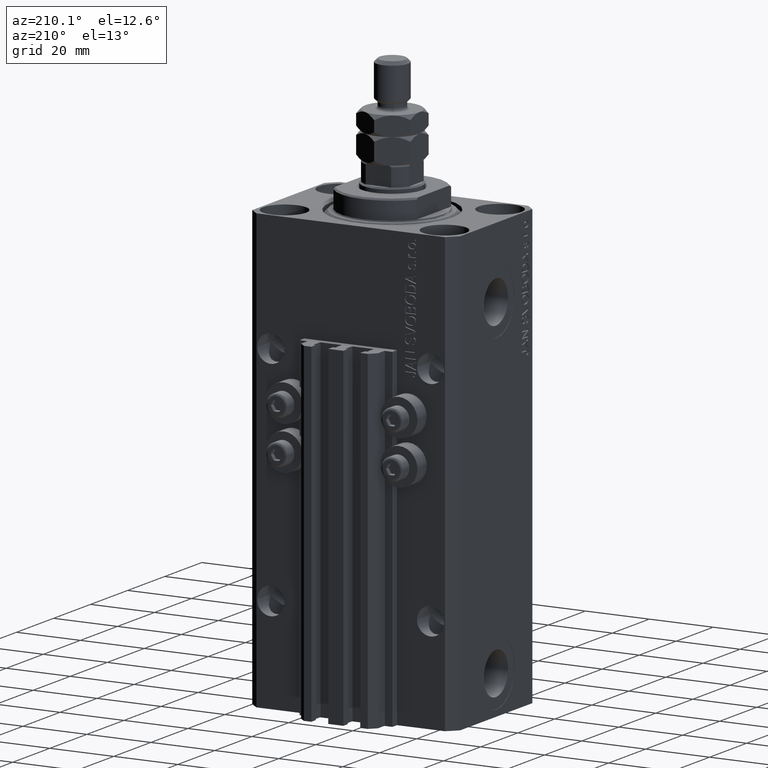
[diagram: clean part render]
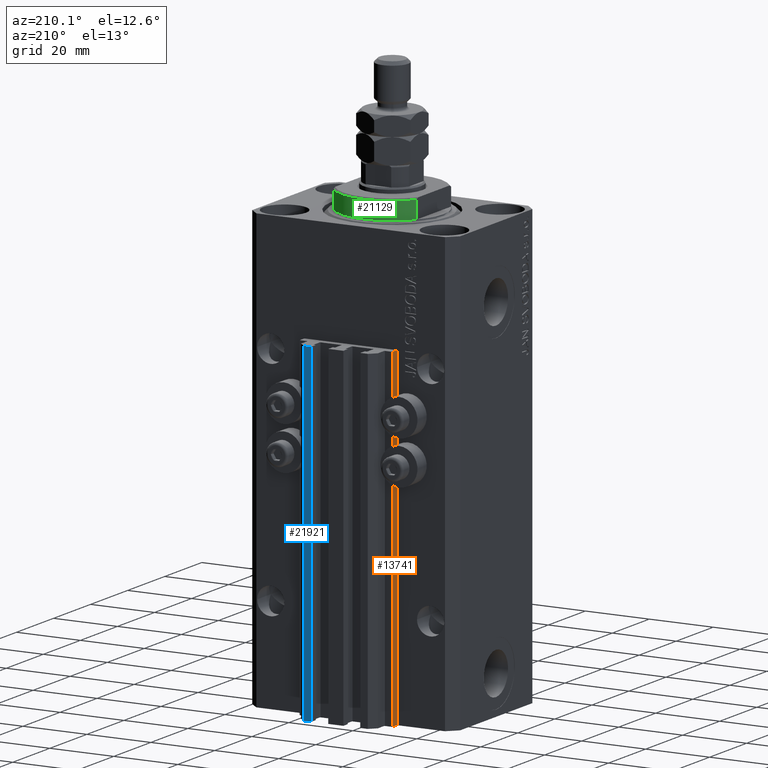
[diagram: same view with three faces highlighted in distinct colors, each labeled with its STEP entity id]
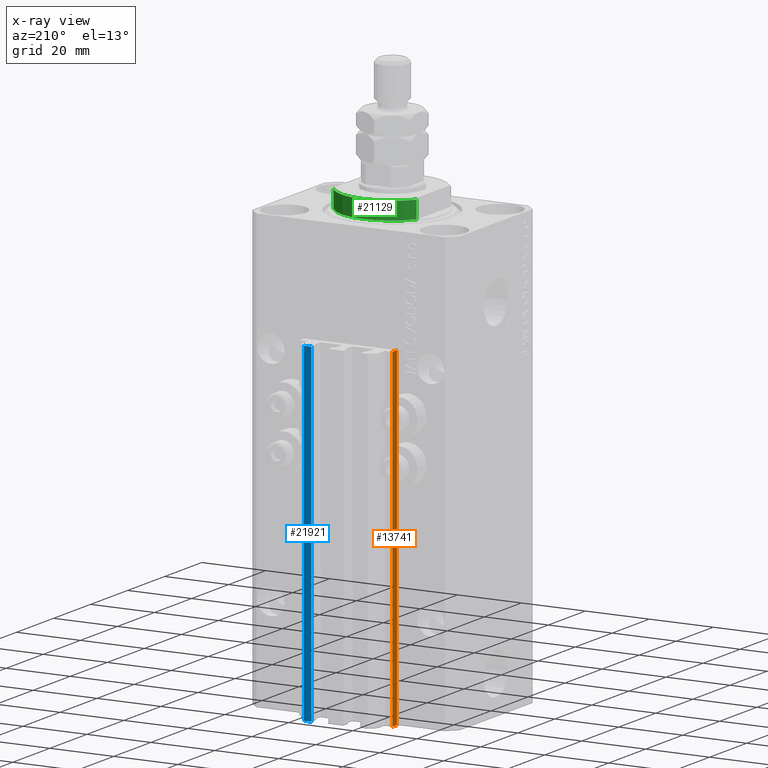
[diagram: x-ray of the same camera — body ghosted, the three highlighted faces saturated]
A machine part, auxiliary view with three faces highlighted in distinct colors.
The next image is the same camera in x-ray (body ghosted, the three faces saturated) — at least one of them is partly hidden behind the body in this view.
Their STEP definitions:

[orange] entity #13741 — the highlighted planar face has unit normal (-1, 0, 0).
#6391 = AXIS2_PLACEMENT_3D ( 'NONE', #11581, #19884, #31492 ) ;
#7897 = DIRECTION ( 'NONE',  ( 0.000000000000000000, -1.000000000000000000, 0.000000000000000000 ) ) ;
#11581 = CARTESIAN_POINT ( 'NONE',  ( -14.50000000000000000, 24.99999999999949196, -137.0000000000000000 ) ) ;
#12484 = ORIENTED_EDGE ( 'NONE', *, *, #44656, .F. ) ;
#12880 = DIRECTION ( 'NONE',  ( 0.000000000000000000, 0.000000000000000000, 1.000000000000000000 ) ) ;
#13560 = EDGE_CURVE ( 'NONE', #25637, #23676, #34613, .T. ) ;
#13741 = ADVANCED_FACE ( 'NONE', ( #27211 ), #19404, .T. ) ;
#15668 = LINE ( 'NONE', #26769, #37149 ) ;
#17080 = CARTESIAN_POINT ( 'NONE',  ( -14.50000000000000000, 24.99999999999949196, -137.0000000000000000 ) ) ;
#17156 = ORIENTED_EDGE ( 'NONE', *, *, #13560, .T. ) ;
#19117 = CARTESIAN_POINT ( 'NONE',  ( -14.50000000000000000, 22.49999999999949907, -33.00000000000000000 ) ) ;
#19404 = PLANE ( 'NONE',  #6391 ) ;
#19884 = DIRECTION ( 'NONE',  ( -1.000000000000000000, 0.000000000000000000, 0.000000000000000000 ) ) ;
#22385 = EDGE_CURVE ( 'NONE', #25637, #35959, #15668, .T. ) ;
#23676 = VERTEX_POINT ( 'NONE', #39894 ) ;
#24484 = DIRECTION ( 'NONE',  ( 0.000000000000000000, -1.000000000000000000, 0.000000000000000000 ) ) ;
#25350 = ORIENTED_EDGE ( 'NONE', *, *, #22385, .F. ) ;
#25637 = VERTEX_POINT ( 'NONE', #17080 ) ;
#26502 = VECTOR ( 'NONE', #7897, 1000.000000000000000 ) ;
#26769 = CARTESIAN_POINT ( 'NONE',  ( -14.50000000000000000, 24.99999999999949196, -137.0000000000000000 ) ) ;
#27051 = CARTESIAN_POINT ( 'NONE',  ( -14.50000000000000000, 24.99999999999949196, -137.0000000000000000 ) ) ;
#27211 = FACE_OUTER_BOUND ( 'NONE', #35047, .T. ) ;
#28758 = LINE ( 'NONE', #37054, #28971 ) ;
#28971 = VECTOR ( 'NONE', #24484, 1000.000000000000000 ) ;
#29020 = CARTESIAN_POINT ( 'NONE',  ( -14.50000000000000000, 22.49999999999949907, -137.0000000000000000 ) ) ;
#31492 = DIRECTION ( 'NONE',  ( 0.000000000000000000, 0.000000000000000000, 1.000000000000000000 ) ) ;
#34613 = LINE ( 'NONE', #27051, #26502 ) ;
#35047 = EDGE_LOOP ( 'NONE', ( #12484, #25350, #17156, #41484 ) ) ;
#35959 = VERTEX_POINT ( 'NONE', #47574 ) ;
#37054 = CARTESIAN_POINT ( 'NONE',  ( -14.50000000000000000, 24.99999999999949196, -33.00000000000000000 ) ) ;
#37149 = VECTOR ( 'NONE', #38820, 1000.000000000000000 ) ;
#37345 = VERTEX_POINT ( 'NONE', #19117 ) ;
#38820 = DIRECTION ( 'NONE',  ( 0.000000000000000000, 0.000000000000000000, 1.000000000000000000 ) ) ;
#39894 = CARTESIAN_POINT ( 'NONE',  ( -14.50000000000000000, 22.49999999999949907, -137.0000000000000000 ) ) ;
#40066 = LINE ( 'NONE', #29020, #45850 ) ;
#41484 = ORIENTED_EDGE ( 'NONE', *, *, #44587, .T. ) ;
#44587 = EDGE_CURVE ( 'NONE', #23676, #37345, #40066, .T. ) ;
#44656 = EDGE_CURVE ( 'NONE', #35959, #37345, #28758, .T. ) ;
#45850 = VECTOR ( 'NONE', #12880, 1000.000000000000000 ) ;
#47574 = CARTESIAN_POINT ( 'NONE',  ( -14.50000000000000000, 24.99999999999949196, -33.00000000000000000 ) ) ;

[blue] entity #21921 — the highlighted planar face has unit normal (-0, 1, 0).
#143 = CARTESIAN_POINT ( 'NONE',  ( 7.649999999999995026, 30.49999999999949196, -137.0000000000000000 ) ) ;
#1153 = PLANE ( 'NONE',  #42785 ) ;
#2640 = ORIENTED_EDGE ( 'NONE', *, *, #28500, .F. ) ;
#4535 = CARTESIAN_POINT ( 'NONE',  ( 7.649999999999995026, 30.49999999999949196, -137.0000000000000000 ) ) ;
#5299 = CARTESIAN_POINT ( 'NONE',  ( 9.999999999999994671, 30.49999999999949551, -137.0000000000000000 ) ) ;
#5613 = LINE ( 'NONE', #20486, #37357 ) ;
#6993 = VERTEX_POINT ( 'NONE', #15366 ) ;
#7802 = ORIENTED_EDGE ( 'NONE', *, *, #23204, .T. ) ;
#8219 = CARTESIAN_POINT ( 'NONE',  ( 9.999999999999994671, 30.49999999999949551, -137.0000000000000000 ) ) ;
#8323 = LINE ( 'NONE', #4535, #13864 ) ;
#10782 = ORIENTED_EDGE ( 'NONE', *, *, #36817, .T. ) ;
#11603 = DIRECTION ( 'NONE',  ( 0.000000000000000000, 0.000000000000000000, 1.000000000000000000 ) ) ;
#13864 = VECTOR ( 'NONE', #11603, 1000.000000000000000 ) ;
#15366 = CARTESIAN_POINT ( 'NONE',  ( 7.649999999999995026, 30.49999999999949196, -33.00000000000000000 ) ) ;
#16645 = DIRECTION ( 'NONE',  ( 0.000000000000000000, 0.000000000000000000, 1.000000000000000000 ) ) ;
#17136 = LINE ( 'NONE', #5299, #20506 ) ;
#17411 = EDGE_LOOP ( 'NONE', ( #34626, #2640, #10782, #7802 ) ) ;
#18603 = CARTESIAN_POINT ( 'NONE',  ( 9.999999999999994671, 30.49999999999949551, -33.00000000000000000 ) ) ;
#19145 = VERTEX_POINT ( 'NONE', #143 ) ;
#20486 = CARTESIAN_POINT ( 'NONE',  ( 9.999999999999994671, 30.49999999999949551, -33.00000000000000000 ) ) ;
#20506 = VECTOR ( 'NONE', #16645, 1000.000000000000000 ) ;
#21921 = ADVANCED_FACE ( 'NONE', ( #35167 ), #1153, .T. ) ;
#23204 = EDGE_CURVE ( 'NONE', #19145, #6993, #8323, .T. ) ;
#24487 = CARTESIAN_POINT ( 'NONE',  ( 9.999999999999994671, 30.49999999999949551, -137.0000000000000000 ) ) ;
#26883 = DIRECTION ( 'NONE',  ( -1.476360405086645049E-15, 1.000000000000000000, 0.000000000000000000 ) ) ;
#28183 = EDGE_CURVE ( 'NONE', #34107, #6993, #5613, .T. ) ;
#28500 = EDGE_CURVE ( 'NONE', #29544, #34107, #17136, .T. ) ;
#29544 = VERTEX_POINT ( 'NONE', #46815 ) ;
#31913 = VECTOR ( 'NONE', #40068, 1000.000000000000000 ) ;
#32820 = DIRECTION ( 'NONE',  ( -1.000000000000000000, -1.476360405086644852E-15, 0.000000000000000000 ) ) ;
#34107 = VERTEX_POINT ( 'NONE', #18603 ) ;
#34626 = ORIENTED_EDGE ( 'NONE', *, *, #28183, .F. ) ;
#35167 = FACE_OUTER_BOUND ( 'NONE', #17411, .T. ) ;
#35666 = DIRECTION ( 'NONE',  ( -1.000000000000000000, -1.476360405086645049E-15, 0.000000000000000000 ) ) ;
#36817 = EDGE_CURVE ( 'NONE', #29544, #19145, #47387, .T. ) ;
#37357 = VECTOR ( 'NONE', #32820, 1000.000000000000000 ) ;
#40068 = DIRECTION ( 'NONE',  ( -1.000000000000000000, -1.476360405086644852E-15, 0.000000000000000000 ) ) ;
#42785 = AXIS2_PLACEMENT_3D ( 'NONE', #8219, #26883, #35666 ) ;
#46815 = CARTESIAN_POINT ( 'NONE',  ( 9.999999999999994671, 30.49999999999949551, -137.0000000000000000 ) ) ;
#47387 = LINE ( 'NONE', #24487, #31913 ) ;

[green] entity #21129 — the highlighted cylindrical surface (partial cylindrical patch) has radius 16 mm, axis along (0, 0, -1).
#160 = CIRCLE ( 'NONE', #29158, 16.00000000000000000 ) ;
#561 = CARTESIAN_POINT ( 'NONE',  ( 13.00000000000000000, 9.327379053088815652, -0.4999999999999995559 ) ) ;
#2391 = CYLINDRICAL_SURFACE ( 'NONE', #25890, 16.00000000000000000 ) ;
#4006 = EDGE_LOOP ( 'NONE', ( #17094, #16385, #30020, #31946 ) ) ;
#4678 = VERTEX_POINT ( 'NONE', #35329 ) ;
#4773 = DIRECTION ( 'NONE',  ( -0.000000000000000000, -0.000000000000000000, 1.000000000000000000 ) ) ;
#7581 = LINE ( 'NONE', #39024, #24633 ) ;
#7780 = CIRCLE ( 'NONE', #15799, 16.00000000000000000 ) ;
#10061 = EDGE_CURVE ( 'NONE', #4678, #17444, #39903, .T. ) ;
#11676 = VERTEX_POINT ( 'NONE', #561 ) ;
#13486 = VECTOR ( 'NONE', #17502, 1000.000000000000000 ) ;
#15799 = AXIS2_PLACEMENT_3D ( 'NONE', #19905, #20155, #39277 ) ;
#16385 = ORIENTED_EDGE ( 'NONE', *, *, #35887, .T. ) ;
#17094 = ORIENTED_EDGE ( 'NONE', *, *, #35053, .F. ) ;
#17113 = CARTESIAN_POINT ( 'NONE',  ( 13.00000000000000000, 9.327379053088916905, -6.000000000000014211 ) ) ;
#17444 = VERTEX_POINT ( 'NONE', #39318 ) ;
#17502 = DIRECTION ( 'NONE',  ( -0.000000000000000000, -0.000000000000000000, 1.000000000000000000 ) ) ;
#17759 = CARTESIAN_POINT ( 'NONE',  ( 0.000000000000000000, 0.000000000000000000, -6.500000000000000000 ) ) ;
#18013 = DIRECTION ( 'NONE',  ( 1.000000000000000000, -8.881784197001252323E-16, 0.000000000000000000 ) ) ;
#19905 = CARTESIAN_POINT ( 'NONE',  ( 0.000000000000000000, 0.000000000000000000, -6.000000000000023981 ) ) ;
#20155 = DIRECTION ( 'NONE',  ( 0.000000000000000000, 0.000000000000000000, 1.000000000000000000 ) ) ;
#21129 = ADVANCED_FACE ( 'NONE', ( #21524 ), #2391, .T. ) ;
#21524 = FACE_OUTER_BOUND ( 'NONE', #4006, .T. ) ;
#22090 = EDGE_CURVE ( 'NONE', #17444, #11676, #160, .T. ) ;
#23306 = VERTEX_POINT ( 'NONE', #17113 ) ;
#24633 = VECTOR ( 'NONE', #4773, 1000.000000000000000 ) ;
#25890 = AXIS2_PLACEMENT_3D ( 'NONE', #17759, #33133, #48462 ) ;
#28593 = CARTESIAN_POINT ( 'NONE',  ( -13.00000000000000000, 9.327379053088813876, -6.500000000000000000 ) ) ;
#29158 = AXIS2_PLACEMENT_3D ( 'NONE', #41917, #40913, #18013 ) ;
#30020 = ORIENTED_EDGE ( 'NONE', *, *, #10061, .T. ) ;
#31946 = ORIENTED_EDGE ( 'NONE', *, *, #22090, .T. ) ;
#33133 = DIRECTION ( 'NONE',  ( -0.000000000000000000, -0.000000000000000000, 1.000000000000000000 ) ) ;
#35053 = EDGE_CURVE ( 'NONE', #23306, #11676, #7581, .T. ) ;
#35329 = CARTESIAN_POINT ( 'NONE',  ( -13.00000000000000000, 9.327379053088916905, -6.000000000000014211 ) ) ;
#35887 = EDGE_CURVE ( 'NONE', #23306, #4678, #7780, .T. ) ;
#39024 = CARTESIAN_POINT ( 'NONE',  ( 13.00000000000000000, 9.327379053088813876, -6.500000000000000000 ) ) ;
#39277 = DIRECTION ( 'NONE',  ( -1.000000000000000000, 0.000000000000000000, 0.000000000000000000 ) ) ;
#39318 = CARTESIAN_POINT ( 'NONE',  ( -13.00000000000000000, 9.327379053088815652, -0.4999999999999995559 ) ) ;
#39903 = LINE ( 'NONE', #28593, #13486 ) ;
#40913 = DIRECTION ( 'NONE',  ( -0.000000000000000000, -0.000000000000000000, -1.000000000000000000 ) ) ;
#41917 = CARTESIAN_POINT ( 'NONE',  ( 0.000000000000000000, 0.000000000000000000, -0.4999999999999995559 ) ) ;
#48462 = DIRECTION ( 'NONE',  ( 1.000000000000000000, 0.000000000000000000, 0.000000000000000000 ) ) ;